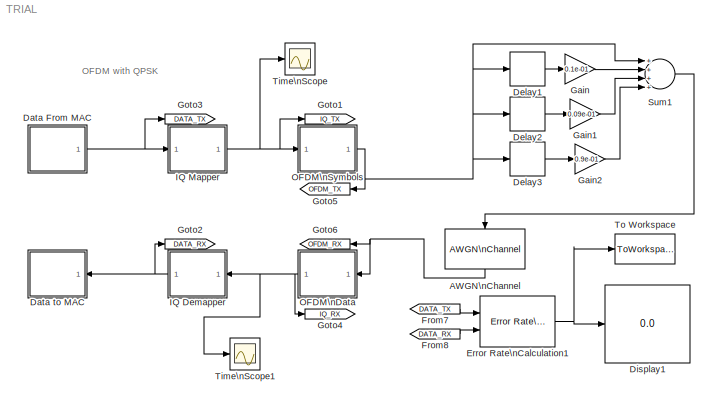
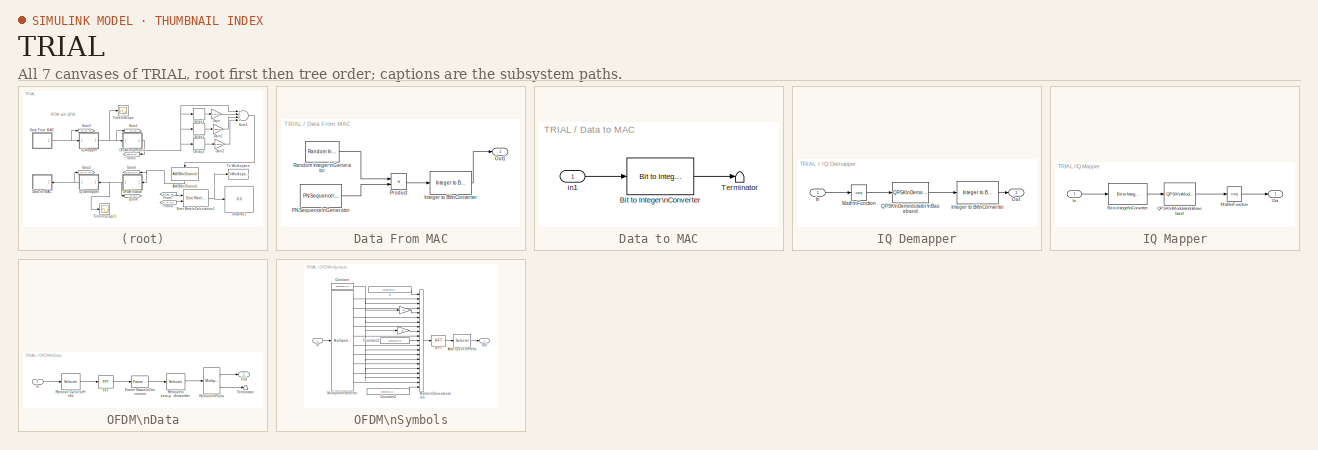
[diagram: thumbnail index - all 7 canvases of the model, root first then tree order]
MODEL TRIAL
KIND model
BLOCK [Reference] AWGN\nChannel  REF=commchan3/AWGN\nChannel
  EbNodB = 10
  EsNodB = 40
  InputProcessing = Columns as channels (frame based)
  Ports = [1, 1]
  Ps = 0.01
  SID = 1
  SNRdB = 0
  SourceBlock = commchan3/AWGN\nChannel
  SourceProductBaseCode = CM
  SourceProductName = Communications Toolbox
  SourceType = AWGN Channel
  Tsym = 4e-6/80
  bitsPerSym = 2
  noiseMode = Signal to noise ratio  (SNR)
  seed = 1
  variance = 1
BLOCK [SubSystem] Data From MAC
  Ports = [0, 1]
  RequestExecContextInheritance = off
  SID = 2
BLOCK [Reference] Data From MAC/Integer to Bit\nConverter  REF=commutil2/Integer to Bit\nConverter
  MultiThreadCoSim = auto
  Ports = [1, 1]
  SID = 132
  SourceBlock = commutil2/Integer to Bit\nConverter
  SourceProductBaseCode = CM
  SourceProductName = Communications Toolbox
  SourceType = Integer to Bit Converter
  bitOrder = MSB first
  nbits = 2
  outDtype = Inherit via internal rule
  signedInputValues = Unsigned
BLOCK [Outport] Data From MAC/Out1
  IconDisplay = Port number
  SID = 5
BLOCK [Reference] Data From MAC/PN Sequence\nGenerator  REF=commseqgen2/PN Sequence\nGenerator
  MultiThreadCoSim = auto
  Ports = [0, 1]
  SID = 125
  SourceBlock = commseqgen2/PN Sequence\nGenerator
  SourceProductBaseCode = CM
  SourceProductName = Communications Toolbox
  SourceType = PN Sequence Generator
  Ts = 1/192
  bitPackDataSigned = off
  bitPackedOutDType = double
  bitPackedOutputs = off
  frameBased = off
  ini_sta = [1 0 0 1 0 0]
  maxOutSize = [10 1]
  maxOutSizeMode = Dialog parameter
  numPackedBits = 8
  outBitMaskSource = Dialog parameter
  outDataType = double
  outVarSiz = off
  poly = [1 0 0 0 0 1 1]
  reset = off
  sampPerFrame = 1
  shift = 0
BLOCK [Product] Data From MAC/Product
  InputSameDT = off
  OutDataTypeStr = Inherit: Inherit via internal rule
  Ports = [2, 1]
  SID = 127
  SaturateOnIntegerOverflow = off
BLOCK [Reference] Data From MAC/Random Integer\nGenerator  REF=commrandsrc2/Random Integer\nGenerator
  Ports = [0, 1]
  SID = 4
  SourceBlock = commrandsrc2/Random Integer\nGenerator
  SourceProductBaseCode = CM
  SourceProductName = Communications Toolbox
  SourceType = Random Integer Generator
  Ts = 1/192
  frameBased = on
  mul = 2
  orient = off
  outDataType = double
  sampPerFrame = 192
  seed = 37
BLOCK [SubSystem] Data to MAC
  Ports = [1]
  RequestExecContextInheritance = off
  SID = 6
BLOCK [Reference] Data to MAC/Bit to Integer\nConverter  REF=commutil2/Bit to Integer\nConverter
  MultiThreadCoSim = auto
  Ports = [1, 1]
  SID = 8
  SourceBlock = commutil2/Bit to Integer\nConverter
  SourceProductBaseCode = CM
  SourceProductName = Communications Toolbox
  SourceType = Bit to Integer Converter
  bitOrder = MSB first
  nbits = 2
  outDtype = Same as input
  outDtypeSigned = Inherit via internal rule
  signedOutputValues = Unsigned
BLOCK [Terminator] Data to MAC/Terminator
  SID = 9
BLOCK [Inport] Data to MAC/in1
  IconDisplay = Port number
  SID = 7
BLOCK [Delay] Delay1
  DelayLength = 1
  InputPortMap = u0
  InputProcessing = Columns as channels (frame based)
  Ports = [1, 1]
  SID = 86
BLOCK [Delay] Delay2
  InputPortMap = u0
  InputProcessing = Columns as channels (frame based)
  Ports = [1, 1]
  SID = 87
BLOCK [Delay] Delay3
  DelayLength = 3
  InputPortMap = u0
  InputProcessing = Columns as channels (frame based)
  Ports = [1, 1]
  SID = 88
BLOCK [Display] Display1
  Decimation = 1
  Ports = [1]
  SID = 81
BLOCK [Reference] Error Rate\nCalculation1  REF=commsink2/Error Rate\nCalculation
  MultiThreadCoSim = auto
  N = 0
  PMode = Port
  Ports = [2, 1]
  RsMode2 = off
  SID = 82
  SourceBlock = commsink2/Error Rate\nCalculation
  SourceProductBaseCode = CM
  SourceProductName = Communications Toolbox
  SourceType = Error Rate Calculation
  WsName = ErrorVec
  cp_mode = Entire frame
  maxBits = 1e6
  numErr = 1e3
  st_delay = 0
  stop = on
  subframe = []
BLOCK [From] From7
  CloseFcn = tagdialog Close
  GotoTag = DATA_TX
  IconDisplay = Signal name
  SID = 79
  TagVisibility = global
BLOCK [From] From8
  CloseFcn = tagdialog Close
  GotoTag = DATA_RX
  IconDisplay = Signal name
  SID = 80
  TagVisibility = global
BLOCK [Gain] Gain
  Gain = 0.1e-01
  OutDataTypeStr = Inherit: Inherit via internal rule
  ParamDataTypeStr = Inherit: Inherit via internal rule
  SID = 89
  SaturateOnIntegerOverflow = off
BLOCK [Gain] Gain1
  Gain = 0.09e-01
  OutDataTypeStr = Inherit: Inherit via internal rule
  ParamDataTypeStr = Inherit: Inherit via internal rule
  SID = 90
  SaturateOnIntegerOverflow = off
BLOCK [Gain] Gain2
  Gain = 0.9e-01
  OutDataTypeStr = Inherit: Inherit via internal rule
  ParamDataTypeStr = Inherit: Inherit via internal rule
  SID = 91
  SaturateOnIntegerOverflow = off
BLOCK [Goto] Goto1
  GotoTag = IQ_TX
  IconDisplay = Signal name
  SID = 17
  TagVisibility = global
BLOCK [Goto] Goto2
  GotoTag = DATA_RX
  IconDisplay = Signal name
  SID = 18
  TagVisibility = global
BLOCK [Goto] Goto3
  GotoTag = DATA_TX
  IconDisplay = Signal name
  SID = 19
  TagVisibility = global
BLOCK [Goto] Goto4
  GotoTag = IQ_RX
  IconDisplay = Signal name
  SID = 20
  TagVisibility = global
BLOCK [Goto] Goto5
  GotoTag = OFDM_TX
  IconDisplay = Signal name
  SID = 21
  TagVisibility = global
BLOCK [Goto] Goto6
  GotoTag = OFDM_RX
  IconDisplay = Signal name
  SID = 22
  TagVisibility = global
BLOCK [SubSystem] IQ Demapper
  Ports = [1, 1]
  RequestExecContextInheritance = off
  SID = 23
BLOCK [Inport] IQ Demapper/In
  IconDisplay = Port number
  SID = 24
BLOCK [Reference] IQ Demapper/Integer to Bit\nConverter  REF=commutil2/Integer to Bit\nConverter
  MultiThreadCoSim = auto
  Ports = [1, 1]
  SID = 26
  SourceBlock = commutil2/Integer to Bit\nConverter
  SourceProductBaseCode = CM
  SourceProductName = Communications Toolbox
  SourceType = Integer to Bit Converter
  bitOrder = MSB first
  nbits = 2
  outDtype = Same as input
  signedInputValues = Unsigned
BLOCK [Math] IQ Demapper/Math\nFunction
  Operator = conj
  Ports = [1, 1]
  SID = 27
BLOCK [Outport] IQ Demapper/Out
  IconDisplay = Port number
  SID = 28
BLOCK [Reference] IQ Demapper/QPSK\nDemodulator\nBaseband  REF=commdigbbndpm3/QPSK\nDemodulator\nBaseband
  Dec = Gray
  DecType = Hard decision
  MultiThreadCoSim = auto
  OutType = Integer
  Ph = pi/4
  Ports = [1, 1]
  SID = 77
  SourceBlock = commdigbbndpm3/QPSK\nDemodulator\nBaseband
  SourceProductBaseCode = CM
  SourceProductName = Communications Toolbox
  SourceType = QPSK Demodulator Baseband
  VarSource = Dialog
  Variance = 1
  derotateFactorDTMode = Same word length as input
  derotateFactorDataTypeStr = Inherit: Same word length as input
  derotateFactorLastDataTypeStr = Inherit: Same word length as input
  derotateFactorWordLen = 16
  outDtype1 = Inherit via internal rule
  outDtype2 = Inherit via internal rule
BLOCK [SubSystem] IQ Mapper
  Ports = [1, 1]
  RequestExecContextInheritance = off
  SID = 29
BLOCK [Reference] IQ Mapper/Bit to Integer\nConverter  REF=commutil2/Bit to Integer\nConverter
  MultiThreadCoSim = auto
  Ports = [1, 1]
  SID = 31
  SourceBlock = commutil2/Bit to Integer\nConverter
  SourceProductBaseCode = CM
  SourceProductName = Communications Toolbox
  SourceType = Bit to Integer Converter
  bitOrder = MSB first
  nbits = 2
  outDtype = Same as input
  outDtypeSigned = Inherit via internal rule
  signedOutputValues = Unsigned
BLOCK [Inport] IQ Mapper/In
  IconDisplay = Port number
  SID = 30
BLOCK [Math] IQ Mapper/Math\nFunction
  Operator = conj
  Ports = [1, 1]
  SID = 33
BLOCK [Outport] IQ Mapper/Out
  IconDisplay = Port number
  SID = 34
BLOCK [Reference] IQ Mapper/QPSK\nModulator\nBaseband  REF=commdigbbndpm3/QPSK\nModulator\nBaseband
  Enc = Gray
  InType = Integer
  MultiThreadCoSim = auto
  Ph = pi/4
  Ports = [1, 1]
  SID = 76
  SourceBlock = commdigbbndpm3/QPSK\nModulator\nBaseband
  SourceProductBaseCode = CM
  SourceProductName = Communications Toolbox
  SourceType = QPSK Modulator Baseband
  outDataTypeStr = double
  outDtype = double
  outFracLen = 15
  outFracLenMode = Best precision
  outLastDataTypeStr = double
  outUDDataType = sfix(16)
  outWordLen = 16
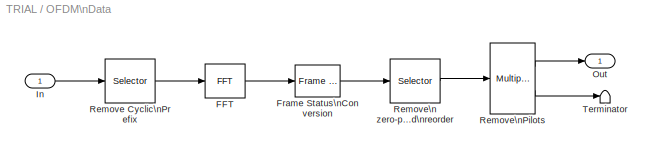
BLOCK [SubSystem] OFDM\nData
  Ports = [1, 1]
  RequestExecContextInheritance = off
  SID = 35
BLOCK [Reference] OFDM\nData/FFT  REF=dspxfrm3/FFT
  BitRevOrder = off
  CompMethod = Table lookup
  FFTImplementation = Auto
  FFTLength = 64
  InheritFFTLength = on
  LockScale = off
  MultiThreadCoSim = auto
  Normalize = off
  Ports = [1, 1]
  SID = 37
  SourceBlock = dspxfrm3/FFT
  SourceProductBaseCode = DS
  SourceProductName = DSP System Toolbox
  SourceType = FFT
  TableOpt = HYBRID
  TableOptActive = Speed
  WrapInput = on
  accumDataTypeStr = Inherit: Inherit via internal rule
  accumFracLength = 30
  accumLastDataTypeStr = Inherit: Inherit via internal rule
  accumMode = Inherit via internal rule
  accumWordLength = 32
  firstCoeffDataTypeStr = Inherit: Same word length as input
  firstCoeffFracLength = 15
  firstCoeffLastDataTypeStr = Inherit: Same word length as input
  firstCoeffMode = Same word length as input
  firstCoeffWordLength = 16
  outputDataTypeStr = Inherit: Inherit via internal rule
  outputFracLength = 15
  outputLastDataTypeStr = Inherit: Inherit via internal rule
  outputMax = []
  outputMin = []
  outputMode = Inherit via internal rule
  outputWordLength = 16
  overflowMode = off
  prodOutputDataTypeStr = Inherit: Inherit via internal rule
  prodOutputFracLength = 30
  prodOutputLastDataTypeStr = Inherit: Inherit via internal rule
  prodOutputMode = Inherit via internal rule
  prodOutputWordLength = 32
  roundingMode = Floor
BLOCK [Reference] OFDM\nData/Frame Status\nConversion  REF=dspobslib/Frame Status\nConversion
  Ports = [1, 1]
  SID = 38
  SourceBlock = dspobslib/Frame Status\nConversion
  SourceProductBaseCode = DS
  SourceProductName = DSP System Toolbox
  SourceType = Frame Status Conversion
  growRefPort = off
  outframe = Frame-based
BLOCK [Inport] OFDM\nData/In
  IconDisplay = Port number
  SID = 36
BLOCK [Outport] OFDM\nData/Out
  IconDisplay = Port number
  SID = 43
BLOCK [Selector] OFDM\nData/Remove Cyclic\nPrefix
  IndexOptions = Index vector (dialog)
  Indices = [65:320]
  InputPortWidth = 320
  OutputSizes = 1
  Ports = [1, 1]
  SID = 41
BLOCK [Selector] OFDM\nData/Remove\n zero-padding\nand\nreorder
  IndexOptions = Index vector (dialog)
  Indices = [29:128 130:229]
  InputPortWidth = 256
  OutputSizes = 1
  Ports = [1, 1]
  SID = 39
BLOCK [Reference] OFDM\nData/Remove\nPilots  REF=dspindex/Multiport\nSelector
  MultiThreadCoSim = auto
  Ports = [1, 2]
  SID = 40
  SourceBlock = dspindex/Multiport\nSelector
  SourceProductBaseCode = DS
  SourceProductName = DSP System Toolbox
  SourceType = Multiport Selector
  idxCellArray = {[1:12 14:37 39:62 64:87 89:112 114:137 139:162 164:187 189:200],[13 38 63 88 113 138 163 188]}
  idxErrMode = Clip Index
  rowsOrCols = Rows
BLOCK [Terminator] OFDM\nData/Terminator
  SID = 42
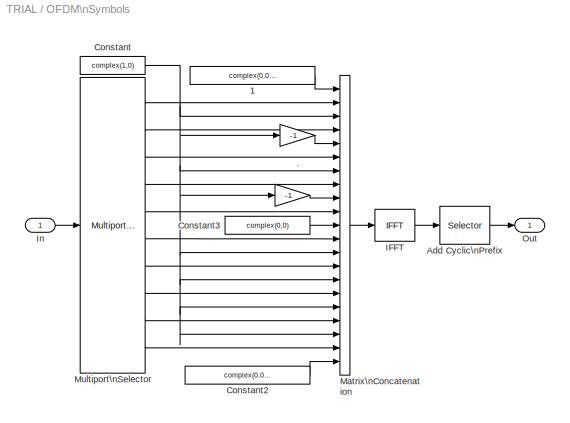
BLOCK [SubSystem] OFDM\nSymbols
  Ports = [1, 1]
  RequestExecContextInheritance = off
  SID = 44
BLOCK [Gain] OFDM\nSymbols/ 
  Gain = -1
  OutDataTypeStr = Inherit: Inherit via internal rule
  ParamDataTypeStr = Inherit: Inherit via internal rule
  SID = 46
  SaturateOnIntegerOverflow = off
BLOCK [Constant] OFDM\nSymbols/ 1
  SID = 47
  Value = complex(0,0)*ones(28,1)
BLOCK [Gain] OFDM\nSymbols/.
  Gain = -1
  OutDataTypeStr = Inherit: Inherit via internal rule
  ParamDataTypeStr = Inherit: Inherit via internal rule
  SID = 48
  SaturateOnIntegerOverflow = off
BLOCK [Selector] OFDM\nSymbols/Add Cyclic\nPrefix
  IndexOptions = Index vector (dialog)
  Indices = [193:256 1:256]
  InputPortWidth = 256
  OutputSizes = 1
  Ports = [1, 1]
  SID = 49
BLOCK [Constant] OFDM\nSymbols/Constant
  SID = 50
  Value = complex(1,0)
BLOCK [Constant] OFDM\nSymbols/Constant2
  SID = 51
  Value = complex(0,0)*ones(27,1)
BLOCK [Constant] OFDM\nSymbols/Constant3
  SID = 52
  Value = complex(0,0)
BLOCK [Reference] OFDM\nSymbols/IFFT  REF=dspxfrm3/IFFT
  BitRevOrder = off
  CompMethod = Table lookup
  FFTImplementation = Auto
  FFTLength = 64
  InheritFFTLength = on
  LockScale = off
  MultiThreadCoSim = auto
  Normalize = on
  Ports = [1, 1]
  SID = 53
  SourceBlock = dspxfrm3/IFFT
  SourceProductBaseCode = DS
  SourceProductName = DSP System Toolbox
  SourceType = IFFT
  TableOpt = HYBRID
  TableOptActive = Speed
  WrapInput = on
  accumDataTypeStr = Inherit: Inherit via internal rule
  accumFracLength = 30
  accumLastDataTypeStr = Inherit: Inherit via internal rule
  accumMode = Inherit via internal rule
  accumWordLength = 32
  cs_in = off
  firstCoeffDataTypeStr = Inherit: Same word length as input
  firstCoeffFracLength = 15
  firstCoeffLastDataTypeStr = Inherit: Same word length as input
  firstCoeffMode = Same word length as input
  firstCoeffWordLength = 16
  mode = Complex
  outSamplingMode = Frame based
  outputDataTypeStr = Inherit: Inherit via internal rule
  outputFracLength = 15
  outputLastDataTypeStr = Inherit: Inherit via internal rule
  outputMax = []
  outputMin = []
  outputMode = Inherit via internal rule
  outputWordLength = 16
  overflowMode = off
  prodOutputDataTypeStr = Inherit: Inherit via internal rule
  prodOutputFracLength = 30
  prodOutputLastDataTypeStr = Inherit: Inherit via internal rule
  prodOutputMode = Inherit via internal rule
  prodOutputWordLength = 32
  roundingMode = Floor
BLOCK [Inport] OFDM\nSymbols/In
  IconDisplay = Port number
  SID = 45
BLOCK [Concatenate] OFDM\nSymbols/Matrix\nConcatenation
  Mode = Multidimensional array
  NumInputs = 21
  Ports = [21, 1]
  SID = 54
BLOCK [Reference] OFDM\nSymbols/Multiport\nSelector  REF=dspindex/Multiport\nSelector
  MultiThreadCoSim = auto
  Ports = [1, 10]
  SID = 55
  SourceBlock = dspindex/Multiport\nSelector
  SourceProductBaseCode = DS
  SourceProductName = DSP System Toolbox
  SourceType = Multiport Selector
  idxCellArray = {1:12, 13:36, 37:60, 61:84, 85:96, 97:108, 109:132, 133:156, 157:180, 181:192}
  idxErrMode = Clip Index
  rowsOrCols = Rows
BLOCK [Outport] OFDM\nSymbols/Out
  IconDisplay = Port number
  SID = 56
BLOCK [Sum] Sum1
  InputSameDT = off
  Inputs = ++++
  OutDataTypeStr = Inherit: Inherit via internal rule
  Ports = [4, 1]
  SID = 92
BLOCK [Scope] Time\nScope
  Commented = on
  DefaultConfigurationName = spbscopes.TimeScopeBlockCfg
  Floating = off
  NumInputPorts = 1
  Ports = [1]
  SID = 130
  ScopeSpecificationString = spbscopes.TimeScopeBlockCfg('CurrentConfiguration', extmgr.ConfigurationSet(extmgr.Configuration('Core','General UI',true),extmgr.Configuration('Core','Source UI',true),extmgr.Configuration('Sources','WiredSimulink',true),extmgr.Configuration('Visuals','Time Domain',true,'DisplayPropertyDefaults',struct('MinYLimReal','-0.88388','MaxYLimReal','0.88388','YLabelReal','Amplitude','MinYLimMag','0.00000...<+1378ch>
  UserDataPersistent = on
BLOCK [Scope] Time\nScope1
  Commented = on
  DefaultConfigurationName = spbscopes.TimeScopeBlockCfg
  Floating = off
  NumInputPorts = 1
  Ports = [1]
  SID = 131
  ScopeSpecificationString = spbscopes.TimeScopeBlockCfg('CurrentConfiguration', extmgr.ConfigurationSet(extmgr.Configuration('Core','General UI',true),extmgr.Configuration('Core','Source UI',true),extmgr.Configuration('Sources','WiredSimulink',true,'DataLoggingVariableName','ScopeData1'),extmgr.Configuration('Visuals','Time Domain',true,'DisplayPropertyDefaults',struct('MinYLimReal','-8.25383','MaxYLimReal','8.64028','YLabel...<+1417ch>
  UserDataPersistent = on
BLOCK [ToWorkspace] To Workspace
  MaxDataPoints = 1
  Ports = [1]
  SID = 83
  SampleTime = -1
  VariableName = BER
ANNOTATION (root): OFDM with QPSK
NET AWGN\nChannel:1 -> Goto6:1, OFDM\nData:1
LINE Data From MAC/Integer to Bit\nConverter:1 -> Data From MAC/Out1:1
LINE Data From MAC/PN Sequence\nGenerator:1 -> Data From MAC/Product:2
LINE Data From MAC/Product:1 -> Data From MAC/Integer to Bit\nConverter:1
LINE Data From MAC/Random Integer\nGenerator:1 -> Data From MAC/Product:1
NET Data From MAC:1 -> Goto3:1, IQ Mapper:1
LINE Data to MAC/Bit to Integer\nConverter:1 -> Data to MAC/Terminator:1
LINE Data to MAC/in1:1 -> Data to MAC/Bit to Integer\nConverter:1
LINE Delay1:1 -> Gain:1
LINE Delay2:1 -> Gain1:1
LINE Delay3:1 -> Gain2:1
NET Error Rate\nCalculation1:1 -> Display1:1, To Workspace:1
LINE From7:1 -> Error Rate\nCalculation1:1
LINE From8:1 -> Error Rate\nCalculation1:2
LINE Gain1:1 -> Sum1:3
LINE Gain2:1 -> Sum1:4
LINE Gain:1 -> Sum1:2
LINE IQ Demapper/In:1 -> IQ Demapper/Math\nFunction:1
LINE IQ Demapper/Integer to Bit\nConverter:1 -> IQ Demapper/Out:1
LINE IQ Demapper/Math\nFunction:1 -> IQ Demapper/QPSK\nDemodulator\nBaseband:1
LINE IQ Demapper/QPSK\nDemodulator\nBaseband:1 -> IQ Demapper/Integer to Bit\nConverter:1
NET IQ Demapper:1 -> Data to MAC:1, Goto2:1
LINE IQ Mapper/Bit to Integer\nConverter:1 -> IQ Mapper/QPSK\nModulator\nBaseband:1
LINE IQ Mapper/In:1 -> IQ Mapper/Bit to Integer\nConverter:1
LINE IQ Mapper/Math\nFunction:1 -> IQ Mapper/Out:1
LINE IQ Mapper/QPSK\nModulator\nBaseband:1 -> IQ Mapper/Math\nFunction:1
NET IQ Mapper:1 -> Goto1:1, OFDM\nSymbols:1, Time\nScope:1
LINE OFDM\nData/FFT:1 -> OFDM\nData/Frame Status\nConversion:1
LINE OFDM\nData/Frame Status\nConversion:1 -> OFDM\nData/Remove\n zero-padding\nand\nreorder:1
LINE OFDM\nData/In:1 -> OFDM\nData/Remove Cyclic\nPrefix:1
LINE OFDM\nData/Remove Cyclic\nPrefix:1 -> OFDM\nData/FFT:1
LINE OFDM\nData/Remove\n zero-padding\nand\nreorder:1 -> OFDM\nData/Remove\nPilots:1
LINE OFDM\nData/Remove\nPilots:1 -> OFDM\nData/Out:1
LINE OFDM\nData/Remove\nPilots:2 -> OFDM\nData/Terminator:1
NET OFDM\nData:1 -> Goto4:1, IQ Demapper:1, Time\nScope1:1
LINE OFDM\nSymbols/ 1:1 -> OFDM\nSymbols/Matrix\nConcatenation:1
LINE OFDM\nSymbols/ :1 -> OFDM\nSymbols/Matrix\nConcatenation:9
LINE OFDM\nSymbols/.:1 -> OFDM\nSymbols/Matrix\nConcatenation:5
LINE OFDM\nSymbols/Add Cyclic\nPrefix:1 -> OFDM\nSymbols/Out:1
LINE OFDM\nSymbols/Constant2:1 -> OFDM\nSymbols/Matrix\nConcatenation:21
LINE OFDM\nSymbols/Constant3:1 -> OFDM\nSymbols/Matrix\nConcatenation:11
NET OFDM\nSymbols/Constant:1 -> OFDM\nSymbols/ :1, OFDM\nSymbols/.:1, OFDM\nSymbols/Matrix\nConcatenation:13, OFDM\nSymbols/Matrix\nConcatenation:15, OFDM\nSymbols/Matrix\nConcatenation:17, OFDM\nSymbols/Matrix\nConcatenation:19, OFDM\nSymbols/Matrix\nConcatenation:3, OFDM\nSymbols/Matrix\nConcatenation:7
LINE OFDM\nSymbols/IFFT:1 -> OFDM\nSymbols/Add Cyclic\nPrefix:1
LINE OFDM\nSymbols/In:1 -> OFDM\nSymbols/Multiport\nSelector:1
LINE OFDM\nSymbols/Matrix\nConcatenation:1 -> OFDM\nSymbols/IFFT:1
LINE OFDM\nSymbols/Multiport\nSelector:1 -> OFDM\nSymbols/Matrix\nConcatenation:2
LINE OFDM\nSymbols/Multiport\nSelector:10 -> OFDM\nSymbols/Matrix\nConcatenation:20
LINE OFDM\nSymbols/Multiport\nSelector:2 -> OFDM\nSymbols/Matrix\nConcatenation:4
LINE OFDM\nSymbols/Multiport\nSelector:3 -> OFDM\nSymbols/Matrix\nConcatenation:6
LINE OFDM\nSymbols/Multiport\nSelector:4 -> OFDM\nSymbols/Matrix\nConcatenation:8
LINE OFDM\nSymbols/Multiport\nSelector:5 -> OFDM\nSymbols/Matrix\nConcatenation:10
LINE OFDM\nSymbols/Multiport\nSelector:6 -> OFDM\nSymbols/Matrix\nConcatenation:12
LINE OFDM\nSymbols/Multiport\nSelector:7 -> OFDM\nSymbols/Matrix\nConcatenation:14
LINE OFDM\nSymbols/Multiport\nSelector:8 -> OFDM\nSymbols/Matrix\nConcatenation:16
LINE OFDM\nSymbols/Multiport\nSelector:9 -> OFDM\nSymbols/Matrix\nConcatenation:18
NET OFDM\nSymbols:1 -> Delay1:1, Delay2:1, Delay3:1, Goto5:1, Sum1:1
LINE Sum1:1 -> AWGN\nChannel:1
note: NET lines group one-source signal fan-out (src -> all destinations, sorted); 1:1 wires keep LINE
